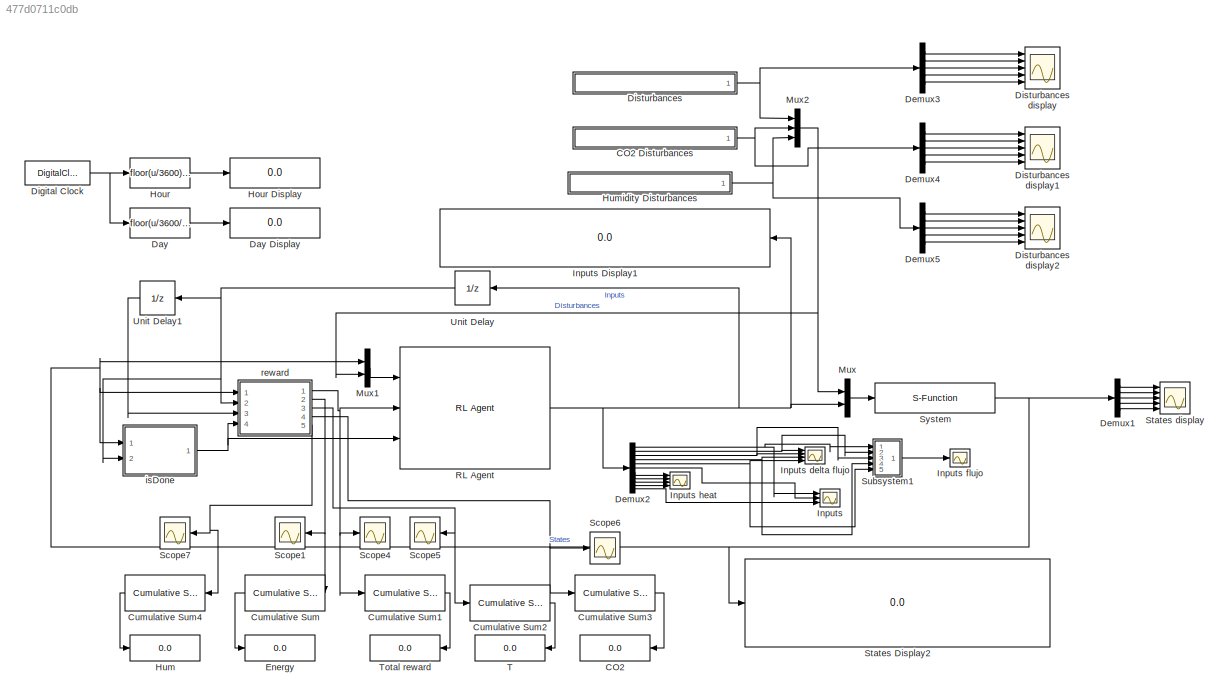
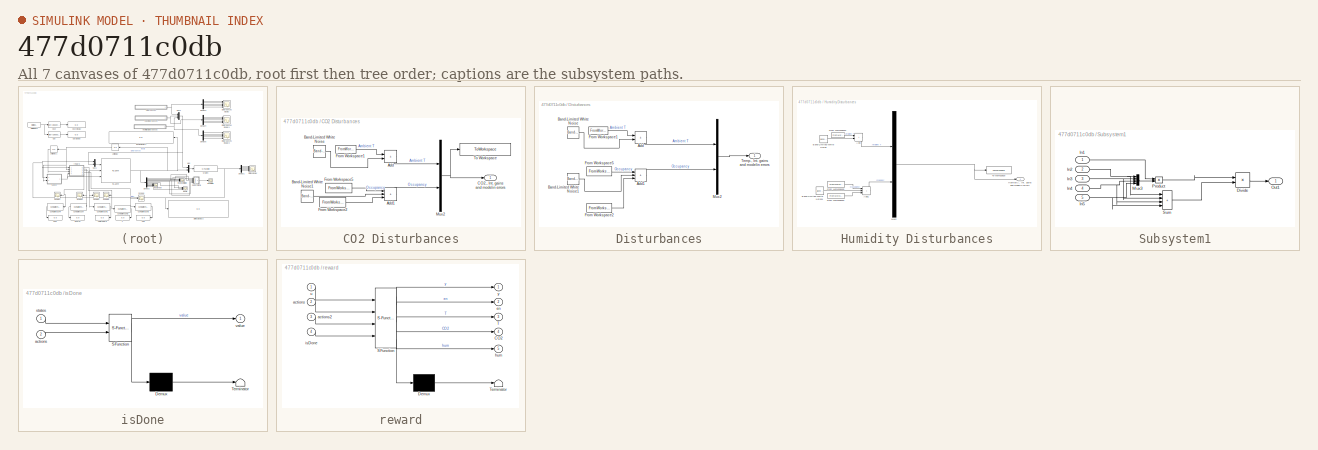
[diagram: thumbnail index - all 7 canvases of the model, root first then tree order]
MODEL slx_477d0711c0db
KIND model
CONFIG AbsTol = auto
CONFIG EnableMultiTasking = on
CONFIG FixedStep = 2
CONFIG MaxStep = auto
CONFIG MinStep = auto
CONFIG RelTol = 1e-3
CONFIG SampleTimeConstraint = Unconstrained
CONFIG SolverName = ode45
CONFIG StartTime = 0.0
CONFIG StopTime = 3600*24*(simulation_days-2)
BLOCK [Display] CO2
  Decimation = 1
  Ports = [1]
BLOCK [SubSystem] CO2 Disturbances
  Ports = [0, 1]
  RequestExecContextInheritance = off
  TreatAsAtomicUnit = on
BLOCK [Sum] CO2 Disturbances/Add
  IconShape = rectangular
  Ports = [2, 1]
BLOCK [Sum] CO2 Disturbances/Add1
  IconShape = rectangular
  Inputs = +++
  Ports = [3, 1]
BLOCK [Reference] CO2 Disturbances/Band-Limited White Noise  REF=simulink/Sources/Band-Limited
White Noise
  Ports = [0, 1]
  SourceBlock = simulink/Sources/Band-Limited\nWhite Noise
  SourceProductBaseCode = SL
  SourceType = Band-Limited White Noise.
BLOCK [Reference] CO2 Disturbances/Band-Limited White Noise1  REF=simulink/Sources/Band-Limited
White Noise
  Ports = [0, 1]
  SourceBlock = simulink/Sources/Band-Limited\nWhite Noise
  SourceProductBaseCode = SL
  SourceType = Band-Limited White Noise.
BLOCK [Outport] CO2 Disturbances/CO2., Int. gains and modelin errors
BLOCK [FromWorkspace] CO2 Disturbances/From Workspace1
  OutDataTypeStr = double
  SampleTime = Ts
  VariableName = CO2s_struct
  ZeroCross = off
BLOCK [FromWorkspace] CO2 Disturbances/From Workspace2
  OutDataTypeStr = double
  SampleTime = Ts
  VariableName = CO2w_struct
  ZeroCross = off
BLOCK [FromWorkspace] CO2 Disturbances/From Workspace5
  OutDataTypeStr = double
  SampleTime = Ts
  VariableName = CO2gens_struct
  ZeroCross = off
BLOCK [Mux] CO2 Disturbances/Mux2
  DisplayOption = bar
  Inputs = 2
  Ports = [2, 1]
BLOCK [ToWorkspace] CO2 Disturbances/To Workspace
  Commented = on
  FixptAsFi = on
  MaxDataPoints = inf
  Ports = [1]
  SampleTime = id.Delta
  SaveFormat = Timeseries
  VariableName = dist_CO2_forid
BLOCK [Reference] Cumulative Sum  REF=dspmathops/Cumulative
Sum
  Ports = [1, 1]
  SourceBlock = dspmathops/Cumulative\nSum
  SourceProductBaseCode = DS
  SourceType = Cumulative Sum
  UserDataPersistent = on
BLOCK [Reference] Cumulative Sum1  REF=dspmathops/Cumulative
Sum
  Ports = [1, 1]
  SourceBlock = dspmathops/Cumulative\nSum
  SourceProductBaseCode = DS
  SourceType = Cumulative Sum
  UserDataPersistent = on
BLOCK [Reference] Cumulative Sum2  REF=dspmathops/Cumulative
Sum
  Ports = [1, 1]
  SourceBlock = dspmathops/Cumulative\nSum
  SourceProductBaseCode = DS
  SourceType = Cumulative Sum
  UserDataPersistent = on
BLOCK [Reference] Cumulative Sum3  REF=dspmathops/Cumulative
Sum
  Ports = [1, 1]
  SourceBlock = dspmathops/Cumulative\nSum
  SourceProductBaseCode = DS
  SourceType = Cumulative Sum
  UserDataPersistent = on
BLOCK [Reference] Cumulative Sum4  REF=dspmathops/Cumulative
Sum
  Ports = [1, 1]
  SourceBlock = dspmathops/Cumulative\nSum
  SourceProductBaseCode = DS
  SourceType = Cumulative Sum
  UserDataPersistent = on
BLOCK [Fcn] Day
  Commented = on
  Expr = floor(u/3600/24)+1
  SampleTime = 1800
BLOCK [Display] Day Display
  Commented = on
  Decimation = 1
  Ports = [1]
BLOCK [Demux] Demux1
  Outputs = 5
  Ports = [1, 5]
BLOCK [Demux] Demux2
  Outputs = 11
  Ports = [1, 11]
BLOCK [Demux] Demux3
  Outputs = 5
  Ports = [1, 5]
BLOCK [Demux] Demux4
  Outputs = 5
  Ports = [1, 5]
BLOCK [Demux] Demux5
  Outputs = 5
  Ports = [1, 5]
BLOCK [DigitalClock] Digital Clock
  Commented = on
  SampleTime = 60
BLOCK [SubSystem] Disturbances
  Ports = [0, 1]
  RequestExecContextInheritance = off
  TreatAsAtomicUnit = on
BLOCK [Scope] Disturbances display
  Floating = off
  NumInputPorts = 5
  Ports = [5]
  ScopeSpecificationString = Simulink.scopes.TimeScopeBlockCfg('CurrentConfiguration', extmgr.ConfigurationSet(extmgr.Configuration('Core','General UI',true),extmgr.Configuration('Core','Source UI',true),extmgr.Configuration('Sources','WiredSimulink',true,'DataLoggingVariableName','dist','DataLoggingSaveFormat','StructureWithTime','DataLoggingDecimation','1','DataLoggingDecimateData',true),extmgr.Configuration('Visuals','Time...<+2387ch>
BLOCK [Scope] Disturbances display1
  Floating = off
  NumInputPorts = 5
  Ports = [5]
  ScopeSpecificationString = Simulink.scopes.TimeScopeBlockCfg('CurrentConfiguration', extmgr.ConfigurationSet(extmgr.Configuration('Core','General UI',true),extmgr.Configuration('Core','Source UI',true),extmgr.Configuration('Sources','WiredSimulink',true,'DataLoggingVariableName','ScopeData1','DataLoggingSaveFormat','StructureWithTime','DataLoggingDecimation','1','DataLoggingDecimateData',true),extmgr.Configuration('Visuals'...<+2383ch>
BLOCK [Scope] Disturbances display2
  Floating = off
  NumInputPorts = 5
  Ports = [5]
  ScopeSpecificationString = Simulink.scopes.TimeScopeBlockCfg('CurrentConfiguration', extmgr.ConfigurationSet(extmgr.Configuration('Core','General UI',true),extmgr.Configuration('Core','Source UI',true),extmgr.Configuration('Sources','WiredSimulink',true,'DataLoggingVariableName','ScopeData1','DataLoggingSaveFormat','StructureWithTime','DataLoggingDecimation','1','DataLoggingDecimateData',true),extmgr.Configuration('Visuals'...<+2383ch>
BLOCK [Sum] Disturbances/Add
  IconShape = rectangular
  Ports = [2, 1]
BLOCK [Sum] Disturbances/Add1
  IconShape = rectangular
  Inputs = +++
  Ports = [3, 1]
BLOCK [Reference] Disturbances/Band-Limited White Noise  REF=simulink/Sources/Band-Limited
White Noise
  Ports = [0, 1]
  SourceBlock = simulink/Sources/Band-Limited\nWhite Noise
  SourceProductBaseCode = SL
  SourceType = Band-Limited White Noise.
BLOCK [Reference] Disturbances/Band-Limited White Noise1  REF=simulink/Sources/Band-Limited
White Noise
  Ports = [0, 1]
  SourceBlock = simulink/Sources/Band-Limited\nWhite Noise
  SourceProductBaseCode = SL
  SourceType = Band-Limited White Noise.
BLOCK [FromWorkspace] Disturbances/From Workspace1
  OutDataTypeStr = double
  SampleTime = Ts
  VariableName = T_supply
  ZeroCross = off
BLOCK [FromWorkspace] Disturbances/From Workspace2
  OutDataTypeStr = double
  SampleTime = Ts
  VariableName = w_struct
  ZeroCross = off
BLOCK [FromWorkspace] Disturbances/From Workspace5
  OutDataTypeStr = double
  SampleTime = Ts
  VariableName = Pds_struct
  ZeroCross = off
BLOCK [Mux] Disturbances/Mux2
  DisplayOption = bar
  Inputs = 2
  Ports = [2, 1]
BLOCK [Outport] Disturbances/Temp., Int. gains and modelin errors
BLOCK [Display] Energy
  Decimation = 1
  Ports = [1]
BLOCK [Fcn] Hour
  Commented = on
  Expr = floor(u/3600)-floor(u/3600/24)*24
  SampleTime = 1800
BLOCK [Display] Hour Display
  Commented = on
  Decimation = 1
  Ports = [1]
BLOCK [Display] Hum
  Decimation = 1
  Ports = [1]
BLOCK [SubSystem] Humidity Disturbances
  Ports = [0, 1]
  RequestExecContextInheritance = off
  TreatAsAtomicUnit = on
BLOCK [Sum] Humidity Disturbances/Add
  IconShape = rectangular
  Ports = [2, 1]
BLOCK [Sum] Humidity Disturbances/Add1
  IconShape = rectangular
  Inputs = +++
  Ports = [3, 1]
BLOCK [Reference] Humidity Disturbances/Band-Limited White Noise  REF=simulink/Sources/Band-Limited
White Noise
  Ports = [0, 1]
  SourceBlock = simulink/Sources/Band-Limited\nWhite Noise
  SourceProductBaseCode = SL
  SourceType = Band-Limited White Noise.
BLOCK [Reference] Humidity Disturbances/Band-Limited White Noise1  REF=simulink/Sources/Band-Limited
White Noise
  Ports = [0, 1]
  SourceBlock = simulink/Sources/Band-Limited\nWhite Noise
  SourceProductBaseCode = SL
  SourceType = Band-Limited White Noise.
BLOCK [FromWorkspace] Humidity Disturbances/From Workspace1
  OutDataTypeStr = double
  SampleTime = Ts
  VariableName = H_supply
  ZeroCross = off
BLOCK [FromWorkspace] Humidity Disturbances/From Workspace2
  OutDataTypeStr = double
  SampleTime = Ts
  VariableName = Hw_struct
  ZeroCross = off
BLOCK [FromWorkspace] Humidity Disturbances/From Workspace5
  OutDataTypeStr = double
  SampleTime = Ts
  VariableName = Hgens_struct
  ZeroCross = off
BLOCK [Outport] Humidity Disturbances/Humidity., Int. gains and modelin errors
BLOCK [Mux] Humidity Disturbances/Mux2
  DisplayOption = bar
  Inputs = 2
  Ports = [2, 1]
BLOCK [ToWorkspace] Humidity Disturbances/To Workspace
  Commented = on
  FixptAsFi = on
  MaxDataPoints = inf
  Ports = [1]
  SampleTime = id.Delta
  SaveFormat = Timeseries
  VariableName = dist_humidities_forid
BLOCK [Scope] Inputs 
  Floating = off
  NumInputPorts = 3
  Ports = [3]
  ScopeSpecificationString = Simulink.scopes.TimeScopeBlockCfg('CurrentConfiguration', extmgr.ConfigurationSet(extmgr.Configuration('Core','General UI',true),extmgr.Configuration('Core','Source UI',true),extmgr.Configuration('Sources','WiredSimulink',true,'DataLogging',true,'DataLoggingVariableName','ScopeData2','DataLoggingSaveFormat','StructureWithTime','DataLoggingDecimation','1','DataLoggingDecimateData',true),extmgr.Conf...<+2340ch>
BLOCK [Display] Inputs Display1
  Decimation = 1
  Ports = [1]
BLOCK [Scope] Inputs delta flujo
  Floating = off
  NumInputPorts = 4
  Ports = [4]
  ScopeSpecificationString = Simulink.scopes.TimeScopeBlockCfg('CurrentConfiguration', extmgr.ConfigurationSet(extmgr.Configuration('Core','General UI',true),extmgr.Configuration('Core','Source UI',true),extmgr.Configuration('Sources','WiredSimulink',true,'DataLogging',true,'DataLoggingVariableName','inputs','DataLoggingSaveFormat','StructureWithTime','DataLoggingDecimation','1','DataLoggingDecimateData',true),extmgr.Configur...<+3818ch>
BLOCK [Scope] Inputs flujo
  Floating = off
  NumInputPorts = 1
  Ports = [1]
  ScopeSpecificationString = Simulink.scopes.TimeScopeBlockCfg('CurrentConfiguration', extmgr.ConfigurationSet(extmgr.Configuration('Core','General UI',true),extmgr.Configuration('Core','Source UI',true),extmgr.Configuration('Sources','WiredSimulink',true,'DataLogging',true,'DataLoggingVariableName','ScopeData1','DataLoggingSaveFormat','StructureWithTime','DataLoggingDecimation','1','DataLoggingDecimateData',true),extmgr.Conf...<+3822ch>
BLOCK [Scope] Inputs heat
  Floating = off
  NumInputPorts = 4
  Ports = [4]
  ScopeSpecificationString = Simulink.scopes.TimeScopeBlockCfg('CurrentConfiguration', extmgr.ConfigurationSet(extmgr.Configuration('Core','General UI',true),extmgr.Configuration('Core','Source UI',true),extmgr.Configuration('Sources','WiredSimulink',true,'DataLogging',true,'DataLoggingVariableName','ScopeData1','DataLoggingSaveFormat','StructureWithTime','DataLoggingDecimation','1','DataLoggingDecimateData',true),extmgr.Conf...<+3837ch>
BLOCK [Mux] Mux
  DisplayOption = bar
  Inputs = 2
  Ports = [2, 1]
BLOCK [Mux] Mux1
  DisplayOption = bar
  Inputs = 2
  Ports = [2, 1]
BLOCK [Mux] Mux2
  DisplayOption = bar
  Inputs = 3
  Ports = [3, 1]
BLOCK [Reference] RL Agent  REF=rllib/RL Agent
  Ports = [3, 1]
  SourceBlock = rllib/RL Agent
  SourceProductBaseCode = RL
  SourceType = RL Agent
BLOCK [Scope] Scope1
  Floating = off
  NumInputPorts = 1
  Ports = [1]
  ScopeSpecificationString = Simulink.scopes.TimeScopeBlockCfg('CurrentConfiguration', extmgr.ConfigurationSet(extmgr.Configuration('Core','General UI',true),extmgr.Configuration('Core','Source UI',true),extmgr.Configuration('Sources','WiredSimulink',true,'DataLoggingVariableName','ScopeData1','DataLoggingSaveFormat','StructureWithTime','DataLoggingDecimation','1','DataLoggingDecimateData',true),extmgr.Configuration('Visuals'...<+1806ch>
BLOCK [Scope] Scope4
  Floating = off
  NumInputPorts = 1
  Ports = [1]
  ScopeSpecificationString = Simulink.scopes.TimeScopeBlockCfg('CurrentConfiguration', extmgr.ConfigurationSet(extmgr.Configuration('Core','General UI',true),extmgr.Configuration('Core','Source UI',true),extmgr.Configuration('Sources','WiredSimulink',true,'DataLoggingVariableName','ScopeData2','DataLoggingSaveFormat','StructureWithTime','DataLoggingDecimation','1','DataLoggingDecimateData',true),extmgr.Configuration('Visuals'...<+1795ch>
BLOCK [Scope] Scope5
  Floating = off
  NumInputPorts = 1
  Ports = [1]
  ScopeSpecificationString = Simulink.scopes.TimeScopeBlockCfg('CurrentConfiguration', extmgr.ConfigurationSet(extmgr.Configuration('Core','General UI',true),extmgr.Configuration('Core','Source UI',true),extmgr.Configuration('Sources','WiredSimulink',true,'DataLoggingVariableName','ScopeData3','DataLoggingSaveFormat','StructureWithTime','DataLoggingDecimation','1','DataLoggingDecimateData',true),extmgr.Configuration('Visuals'...<+1795ch>
BLOCK [Scope] Scope6
  Floating = off
  NumInputPorts = 1
  Ports = [1]
  ScopeSpecificationString = Simulink.scopes.TimeScopeBlockCfg('CurrentConfiguration', extmgr.ConfigurationSet(extmgr.Configuration('Core','General UI',true),extmgr.Configuration('Core','Source UI',true),extmgr.Configuration('Sources','WiredSimulink',true,'DataLoggingVariableName','ScopeData4','DataLoggingSaveFormat','StructureWithTime','DataLoggingDecimation','1','DataLoggingDecimateData',true),extmgr.Configuration('Visuals'...<+1795ch>
BLOCK [Scope] Scope7
  Floating = off
  NumInputPorts = 1
  Ports = [1]
  ScopeSpecificationString = Simulink.scopes.TimeScopeBlockCfg('CurrentConfiguration', extmgr.ConfigurationSet(extmgr.Configuration('Core','General UI',true),extmgr.Configuration('Core','Source UI',true),extmgr.Configuration('Sources','WiredSimulink',true,'DataLoggingVariableName','ScopeData5','DataLoggingSaveFormat','StructureWithTime','DataLoggingDecimation','1','DataLoggingDecimateData',true),extmgr.Configuration('Visuals'...<+1806ch>
BLOCK [Display] States Display2
  Decimation = 1
  Ports = [1]
BLOCK [Scope] States display
  Floating = off
  NumInputPorts = 5
  Ports = [5]
  ScopeSpecificationString = Simulink.scopes.TimeScopeBlockCfg('CurrentConfiguration', extmgr.ConfigurationSet(extmgr.Configuration('Core','General UI',true),extmgr.Configuration('Core','Source UI',true),extmgr.Configuration('Sources','WiredSimulink',true,'DataLogging',true,'DataLoggingVariableName','states','DataLoggingSaveFormat','StructureWithTime','DataLoggingDecimation','1','DataLoggingDecimateData',true),extmgr.Configur...<+4759ch>
BLOCK [SubSystem] Subsystem1
  Ports = [5, 1]
  RequestExecContextInheritance = off
BLOCK [Product] Subsystem1/Divide
  Inputs = */
  Ports = [2, 1]
BLOCK [Inport] Subsystem1/In1
BLOCK [Inport] Subsystem1/In2
  Port = 2
BLOCK [Inport] Subsystem1/In3
  Port = 3
BLOCK [Inport] Subsystem1/In4
  Port = 4
BLOCK [Inport] Subsystem1/In5
  Port = 5
BLOCK [Mux] Subsystem1/Mux3
  DisplayOption = bar
  Ports = [4, 1]
BLOCK [Outport] Subsystem1/Out1
BLOCK [Product] Subsystem1/Product
  Ports = [2, 1]
BLOCK [Sum] Subsystem1/Sum
  IconShape = rectangular
  Inputs = |++++
  Ports = [4, 1]
BLOCK [S-Function] System
  EnableBusSupport = off
  FunctionName = maborrelli_sfunc_nzones2
  Parameters = ci,paramsnz,Ts
  Ports = [1, 1]
  SFcnIsStateOwnerBlock = off
  SFunctionDeploymentMode = off
BLOCK [Display] T
  Decimation = 1
  Ports = [1]
BLOCK [Display] Total reward
  Decimation = 1
  Ports = [1]
BLOCK [UnitDelay] Unit Delay
  HasFrameUpgradeWarning = on
  SampleTime = Ts2
BLOCK [UnitDelay] Unit Delay1
  HasFrameUpgradeWarning = on
  SampleTime = Ts2
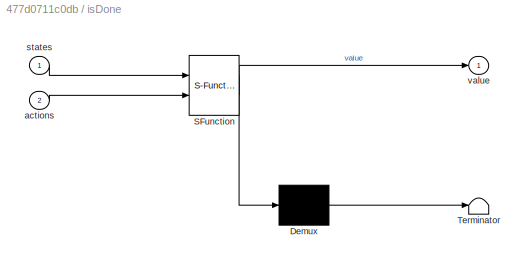
BLOCK [SubSystem] isDone
  ErrorFcn = Stateflow.Translate.translate
  PermitHierarchicalResolution = ExplicitOnly
  Ports = [2, 1]
  RequestExecContextInheritance = off
  SFBlockType = MATLAB Function
  TreatAsAtomicUnit = on
BLOCK [Demux] isDone/ Demux 
  Outputs = 1
  Ports = [1, 1]
BLOCK [S-Function] isDone/ SFunction 
  EnableBusSupport = on
  FunctionName = sf_sfun
  PortCounts = [2 2]
  Ports = [2, 2]
  SFcnIsStateOwnerBlock = off
  SFunctionDeploymentMode = off
  Tag = Stateflow S-Function 1
BLOCK [Terminator] isDone/ Terminator 
BLOCK [Inport] isDone/actions
  Port = 2
BLOCK [Inport] isDone/states
BLOCK [Outport] isDone/value
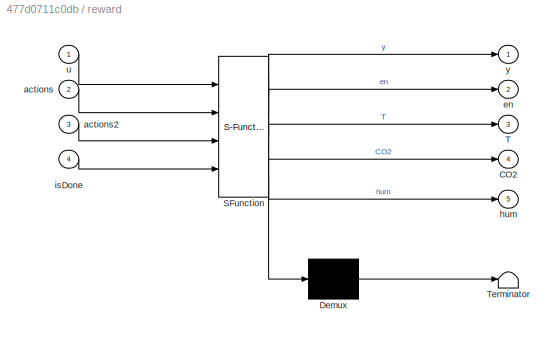
BLOCK [SubSystem] reward
  ErrorFcn = Stateflow.Translate.translate
  PermitHierarchicalResolution = ExplicitOnly
  Ports = [4, 5]
  RequestExecContextInheritance = off
  SFBlockType = MATLAB Function
  TreatAsAtomicUnit = on
BLOCK [Demux] reward/ Demux 
  Outputs = 1
  Ports = [1, 1]
BLOCK [S-Function] reward/ SFunction 
  EnableBusSupport = on
  FunctionName = sf_sfun
  Parameters = CO2_max,beta,high,low,params,scale
  PortCounts = [4 6]
  Ports = [4, 6]
  SFcnIsStateOwnerBlock = off
  SFunctionDeploymentMode = off
  Tag = Stateflow S-Function 2
BLOCK [Terminator] reward/ Terminator 
BLOCK [Outport] reward/CO2
  Port = 4
BLOCK [Outport] reward/T
  Port = 3
BLOCK [Inport] reward/actions
  Port = 2
BLOCK [Inport] reward/actions2
  Port = 3
BLOCK [Outport] reward/en
  Port = 2
BLOCK [Outport] reward/hum
  Port = 5
BLOCK [Inport] reward/isDone
  Port = 4
BLOCK [Inport] reward/u
BLOCK [Outport] reward/y
LINE CO2 Disturbances/Add1:1 -> CO2 Disturbances/Mux2:2
LINE CO2 Disturbances/Add:1 -> CO2 Disturbances/Mux2:1
LINE CO2 Disturbances/Band-Limited White Noise1:1 -> CO2 Disturbances/Add1:2
LINE CO2 Disturbances/Band-Limited White Noise:1 -> CO2 Disturbances/Add:2
LINE CO2 Disturbances/From Workspace1:1 -> CO2 Disturbances/Add:1
LINE CO2 Disturbances/From Workspace2:1 -> CO2 Disturbances/Add1:3
LINE CO2 Disturbances/From Workspace5:1 -> CO2 Disturbances/Add1:1
NET CO2 Disturbances/Mux2:1 -> CO2 Disturbances/CO2., Int. gains and modelin errors:1, CO2 Disturbances/To Workspace:1
NET CO2 Disturbances:1 -> Demux4:1, Mux2:2
LINE Cumulative Sum1:1 -> Total reward:1
LINE Cumulative Sum2:1 -> T:1
LINE Cumulative Sum3:1 -> CO2:1
LINE Cumulative Sum4:1 -> Hum:1
LINE Cumulative Sum:1 -> Energy:1
LINE Day:1 -> Day Display:1
LINE Demux1:1 -> States display:1
LINE Demux1:2 -> States display:2
LINE Demux1:3 -> States display:3
LINE Demux1:4 -> States display:4
LINE Demux1:5 -> States display:5
NET Demux2:1 -> Inputs :1, Subsystem1:1
LINE Demux2:10 -> Inputs heat:4
LINE Demux2:11 -> Inputs :3
NET Demux2:2 -> Inputs delta flujo:1, Subsystem1:2
NET Demux2:3 -> Inputs delta flujo:2, Subsystem1:3
NET Demux2:4 -> Inputs delta flujo:3, Subsystem1:4
NET Demux2:5 -> Inputs delta flujo:4, Subsystem1:5
LINE Demux2:6 -> Inputs :2
LINE Demux2:7 -> Inputs heat:1
LINE Demux2:8 -> Inputs heat:2
LINE Demux2:9 -> Inputs heat:3
LINE Demux3:1 -> Disturbances display:1
LINE Demux3:2 -> Disturbances display:2
LINE Demux3:3 -> Disturbances display:3
LINE Demux3:4 -> Disturbances display:4
LINE Demux3:5 -> Disturbances display:5
LINE Demux4:1 -> Disturbances display1:1
LINE Demux4:2 -> Disturbances display1:2
LINE Demux4:3 -> Disturbances display1:3
LINE Demux4:4 -> Disturbances display1:4
LINE Demux4:5 -> Disturbances display1:5
LINE Demux5:1 -> Disturbances display2:1
LINE Demux5:2 -> Disturbances display2:2
LINE Demux5:3 -> Disturbances display2:3
LINE Demux5:4 -> Disturbances display2:4
LINE Demux5:5 -> Disturbances display2:5
NET Digital Clock:1 -> Day:1, Hour:1
LINE Disturbances/Add1:1 -> Disturbances/Mux2:2
LINE Disturbances/Add:1 -> Disturbances/Mux2:1
LINE Disturbances/Band-Limited White Noise1:1 -> Disturbances/Add1:2
LINE Disturbances/Band-Limited White Noise:1 -> Disturbances/Add:2
LINE Disturbances/From Workspace1:1 -> Disturbances/Add:1
LINE Disturbances/From Workspace2:1 -> Disturbances/Add1:3
LINE Disturbances/From Workspace5:1 -> Disturbances/Add1:1
LINE Disturbances/Mux2:1 -> Disturbances/Temp., Int. gains and modelin errors:1
NET Disturbances:1 -> Demux3:1, Mux2:1
LINE Hour:1 -> Hour Display:1
LINE Humidity Disturbances/Add1:1 -> Humidity Disturbances/Mux2:2
LINE Humidity Disturbances/Add:1 -> Humidity Disturbances/Mux2:1
LINE Humidity Disturbances/Band-Limited White Noise1:1 -> Humidity Disturbances/Add1:2
LINE Humidity Disturbances/Band-Limited White Noise:1 -> Humidity Disturbances/Add:2
LINE Humidity Disturbances/From Workspace1:1 -> Humidity Disturbances/Add:1
LINE Humidity Disturbances/From Workspace2:1 -> Humidity Disturbances/Add1:3
LINE Humidity Disturbances/From Workspace5:1 -> Humidity Disturbances/Add1:1
NET Humidity Disturbances/Mux2:1 -> Humidity Disturbances/Humidity., Int. gains and modelin errors:1, Humidity Disturbances/To Workspace:1
NET Humidity Disturbances:1 -> Demux5:1, Mux2:3
LINE Mux1:1 -> RL Agent:1
NET Mux2:1 -> Mux1:2, Mux:1
LINE Mux:1 -> System:1
NET RL Agent:1 -> Demux2:1, Inputs Display1:1, Mux:2, Unit Delay:1
LINE Subsystem1/Divide:1 -> Subsystem1/Out1:1
LINE Subsystem1/In1:1 -> Subsystem1/Product:1
NET Subsystem1/In2:1 -> Subsystem1/Mux3:1, Subsystem1/Sum:1
NET Subsystem1/In3:1 -> Subsystem1/Mux3:2, Subsystem1/Sum:2
NET Subsystem1/In4:1 -> Subsystem1/Mux3:3, Subsystem1/Sum:3
NET Subsystem1/In5:1 -> Subsystem1/Mux3:4, Subsystem1/Sum:4
LINE Subsystem1/Mux3:1 -> Subsystem1/Product:2
LINE Subsystem1/Product:1 -> Subsystem1/Divide:1
LINE Subsystem1/Sum:1 -> Subsystem1/Divide:2
LINE Subsystem1:1 -> Inputs flujo:1
NET System:1 -> Demux1:1, Mux1:1, States Display2:1, isDone:1, reward:1
LINE Unit Delay1:1 -> reward:3
NET Unit Delay:1 -> Unit Delay1:1, isDone:2, reward:2
NET isDone:1 -> RL Agent:3, reward:4
NET reward:1 -> Cumulative Sum1:1, RL Agent:2, Scope4:1
NET reward:2 -> Cumulative Sum:1, Scope1:1
NET reward:3 -> Cumulative Sum2:1, Scope5:1
NET reward:4 -> Cumulative Sum3:1, Scope6:1
NET reward:5 -> Cumulative Sum4:1, Scope7:1
note: NET lines group one-source signal fan-out (src -> all destinations, sorted); 1:1 wires keep LINE
CHART isDone states=1 transitions=1
  STATE_LABEL 'eML_blk_kernel()'
  STATE_LABEL 'SCRIPT:\nfunction value = isDone(states, actions)\n low = -0;\n max = 50;\n value = 0; \n %disp(length(block.InputPort(1).Data))\n for i=1:length(states)\n     if sum(actions(2:5)) > 5\n         value = 1;\n         break\n     end\n     %disp(i)\n     if i <=4\n        aux = states(i);\n        if (aux < low || aux > max) \n            %disp(abs(aux - low))\n            value = 1;\n            break\n        end\n ...<+125ch>'
CHART reward states=1 transitions=1
  STATE_LABEL 'eML_blk_kernel()'
  STATE_LABEL 'SCRIPT:\nfunction [y, en, T,  CO2, hum] = reward(u ,  actions, actions2 , isDone, low, high, beta, params, CO2_max, scale)\n reward = 0;\n cp = params.cp;\n eta = params.eta;\n kf = params.kf;\n eta_h = params.eta_h;\n nz = 4;\n ms = actions(1:nz);\n Dt = actions(nz+1);\n Dth = actions(nz+2:2*nz+1);\n delta = actions(2*nz + 2);\n ms0 = actions2(1:nz);\n Dt0 = actions2(nz+1);\n Dth0 = actions2(nz+2:2*nz+1);\n del...<+2030ch>'
CHART  states=0 transitions=0
CHART  states=0 transitions=0
